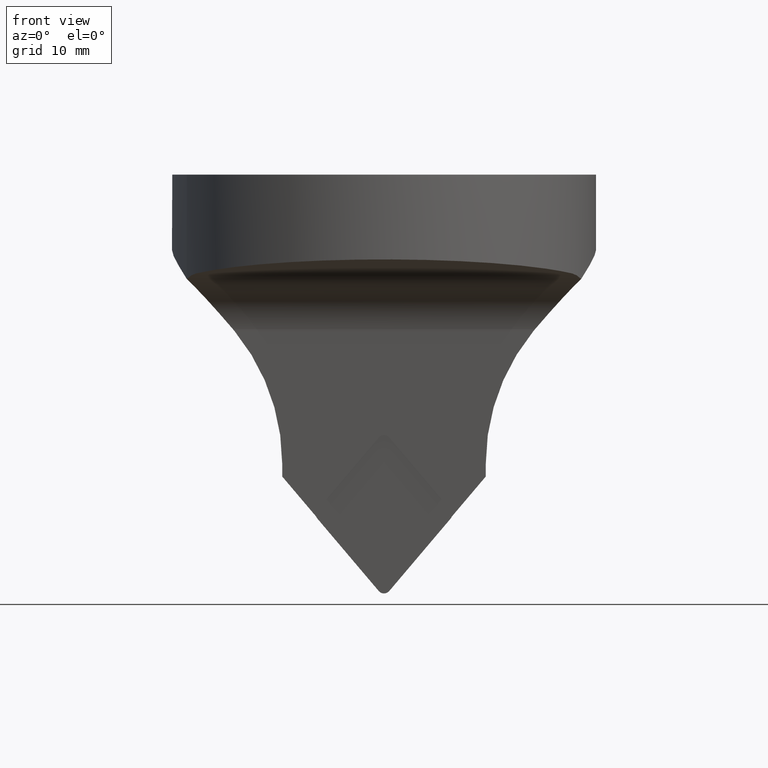
[diagram: clean part render]
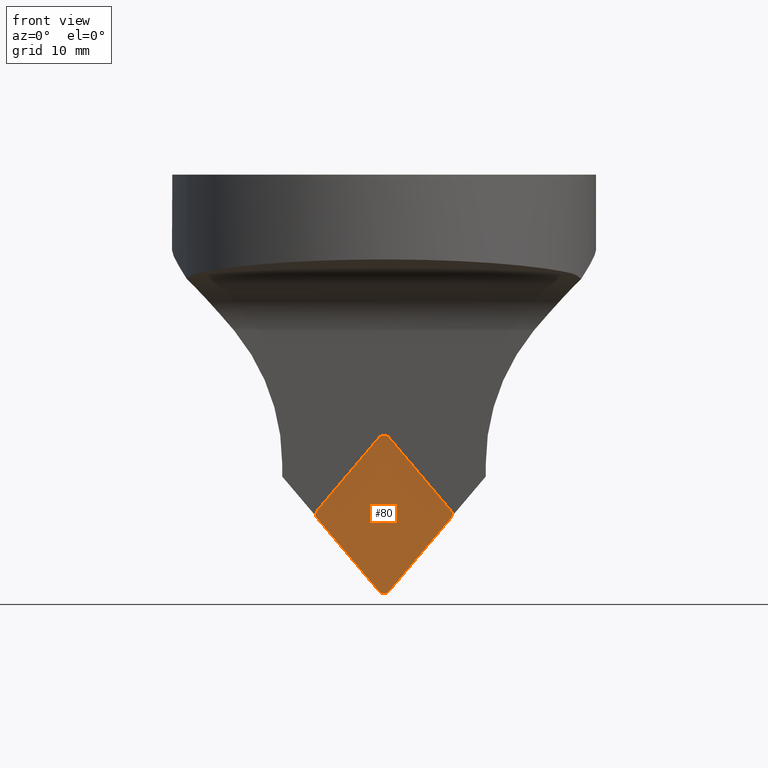
[diagram: same view with one face highlighted and labeled with its STEP entity id]
A machine part, front view. The second image highlights one B-rep face of the part: STEP entity #80.
In plain terms, the highlighted planar face has unit normal (0, 0.9903, 0.1392).
Its self-contained STEP definition (entity closure, byte-faithful):
#80=ADVANCED_FACE('',(#123),#124,.F.);
#123=FACE_OUTER_BOUND('',#198,.T.);
#124=PLANE('',#199);
#198=EDGE_LOOP('',(#298,#299,#300,#301,#302,#303,#304,#305,#306,#307));
#199=AXIS2_PLACEMENT_3D('',#308,#309,#310);
#298=ORIENTED_EDGE('',*,*,#592,.F.);
#299=ORIENTED_EDGE('',*,*,#593,.F.);
#300=ORIENTED_EDGE('',*,*,#594,.F.);
#301=ORIENTED_EDGE('',*,*,#579,.F.);
#302=ORIENTED_EDGE('',*,*,#586,.F.);
#303=ORIENTED_EDGE('',*,*,#589,.F.);
#304=ORIENTED_EDGE('',*,*,#591,.F.);
#305=ORIENTED_EDGE('',*,*,#581,.F.);
#306=ORIENTED_EDGE('',*,*,#595,.F.);
#307=ORIENTED_EDGE('',*,*,#596,.F.);
#308=CARTESIAN_POINT('',(4.02389439130291E-006,-1.39859187371237,-40.0470844983562));
#309=DIRECTION('',(1.36511753325532E-017,0.99026806874157,0.139173100960065));
#310=DIRECTION('',(3.0311698334791E-034,-0.139173100960065,0.99026806874157));
#579=EDGE_CURVE('',#682,#678,#684,.T.);
#581=EDGE_CURVE('',#685,#688,#689,.T.);
#586=EDGE_CURVE('',#695,#682,#697,.T.);
#589=EDGE_CURVE('',#700,#695,#702,.T.);
#591=EDGE_CURVE('',#688,#700,#704,.T.);
#592=EDGE_CURVE('',#705,#706,#707,.T.);
#593=EDGE_CURVE('',#708,#705,#709,.T.);
#594=EDGE_CURVE('',#678,#708,#710,.T.);
#595=EDGE_CURVE('',#711,#685,#712,.T.);
#596=EDGE_CURVE('',#706,#711,#713,.T.);
#678=VERTEX_POINT('',#846);
#682=VERTEX_POINT('',#851);
#684=CIRCLE('',#854,0.8);
#685=VERTEX_POINT('',#855);
#688=VERTEX_POINT('',#859);
#689=CIRCLE('',#860,0.8);
#695=VERTEX_POINT('',#868);
#697=LINE('',#871,#872);
#700=VERTEX_POINT('',#875);
#702=CIRCLE('',#878,0.8);
#704=LINE('',#881,#882);
#705=VERTEX_POINT('',#883);
#706=VERTEX_POINT('',#884);
#707=CIRCLE('',#885,0.8);
#708=VERTEX_POINT('',#886);
#709=LINE('',#887,#888);
#710=CIRCLE('',#889,0.8);
#711=VERTEX_POINT('',#890);
#712=CIRCLE('',#891,0.8);
#713=LINE('',#892,#893);
#846=CARTESIAN_POINT('',(-8.00975442249104,-1.36590280627131,-40.2796792990793));
#851=CARTESIAN_POINT('',(-7.85784600979236,-1.32702421073373,-40.5563148806162));
#854=AXIS2_PLACEMENT_3D('',#1242,#1243,#1244);
#855=CARTESIAN_POINT('',(8.00976230795281,-1.36590406847111,-40.2796703180611));
#859=CARTESIAN_POINT('',(7.85786207904859,-1.32702687386567,-40.5562959314478));
#860=AXIS2_PLACEMENT_3D('',#1246,#1247,#1248);
#868=CARTESIAN_POINT('',(-0.612835546360024,-0.125366464598229,-49.1065540241372));
#871=CARTESIAN_POINT('',(-0.612835546360024,-0.125366464598229,-49.1065540241372));
#872=VECTOR('',#1255,10.0);
#875=CARTESIAN_POINT('',(0.612835566838328,-0.125366463943902,-49.106554028793));
#878=AXIS2_PLACEMENT_3D('',#1260,#1261,#1262);
#881=CARTESIAN_POINT('',(7.85786207904859,-1.32702687386567,-40.5562959314478));
#882=VECTOR('',#1264,10.0);
#883=CARTESIAN_POINT('',(-0.612819493921464,-2.67181861260078,-30.9876055107396));
#884=CARTESIAN_POINT('',(0.61284358304784,-2.67181728043055,-30.9876149896233));
#885=AXIS2_PLACEMENT_3D('',#1265,#1266,#1267);
#886=CARTESIAN_POINT('',(-7.85784601006805,-1.47015820261506,-39.5378636085398));
#887=CARTESIAN_POINT('',(-2.73860687455295,-2.31923542609911,-33.4963652405954));
#888=VECTOR('',#1268,10.0);
#889=AXIS2_PLACEMENT_3D('',#1269,#1270,#1271);
#890=CARTESIAN_POINT('',(7.85785404670881,-1.47015953356966,-39.5378541383058));
#891=AXIS2_PLACEMENT_3D('',#1272,#1273,#1274);
#892=CARTESIAN_POINT('',(6.36112249307907,-1.7184074933775,-37.7714781214454));
#893=VECTOR('',#1275,10.0);
#1242=CARTESIAN_POINT('',(-7.24501045556551,-1.39859120669726,-40.0470892444153));
#1243=DIRECTION('',(2.16840434497101E-017,0.99026806874157,0.139173100960065));
#1244=DIRECTION('',(-0.766044442783564,0.0894587449544154,-0.63653204525114));
#1246=CARTESIAN_POINT('',(7.24501849260938,-1.39859253758499,-40.0470797746571));
#1247=DIRECTION('',(-2.16840434497101E-017,0.99026806874157,0.139173100960065));
#1248=DIRECTION('',(0.766044442624283,-0.0894587449808337,0.636532045439116));
#1255=DIRECTION('',(-0.642787610098184,-0.106612780574022,0.758589350915593));
#1260=CARTESIAN_POINT('',(1.22116894374358E-008,-0.196933459841124,-48.5973283930639));
#1261=DIRECTION('',(0.0,0.99026806874157,0.139173100960065));
#1262=DIRECTION('',(0.766044443283302,0.0894587448715288,-0.636532044661372));
#1264=DIRECTION('',(-0.642787609490697,0.106612780644965,-0.758589351420374));
#1265=CARTESIAN_POINT('',(8.02855265324975E-006,-2.60025028451153,-31.4968406255075));
#1266=DIRECTION('',(2.16840434497101E-017,0.99026806874157,0.139173100960065));
#1267=DIRECTION('',(-0.766054482998246,-0.0894570796575646,0.63652019604835));
#1268=DIRECTION('',(0.642787609675564,-0.106612780623376,0.758589351266762));
#1269=CARTESIAN_POINT('',(-7.24501045556551,-1.39859120669726,-40.0470892444153));
#1270=DIRECTION('',(3.25260651745651E-017,0.99026806874157,0.139173100960065));
#1271=DIRECTION('',(-0.766044442783564,0.0894587449544154,-0.63653204525114));
#1272=CARTESIAN_POINT('',(7.24501849260938,-1.39859253758499,-40.0470797746571));
#1273=DIRECTION('',(3.25260651745651E-017,0.99026806874157,0.139173100960065));
#1274=DIRECTION('',(0.766044442624283,-0.0894587449808337,0.636532045439116));
#1275=DIRECTION('',(0.642787609882384,0.106612780599223,-0.758589351094908));